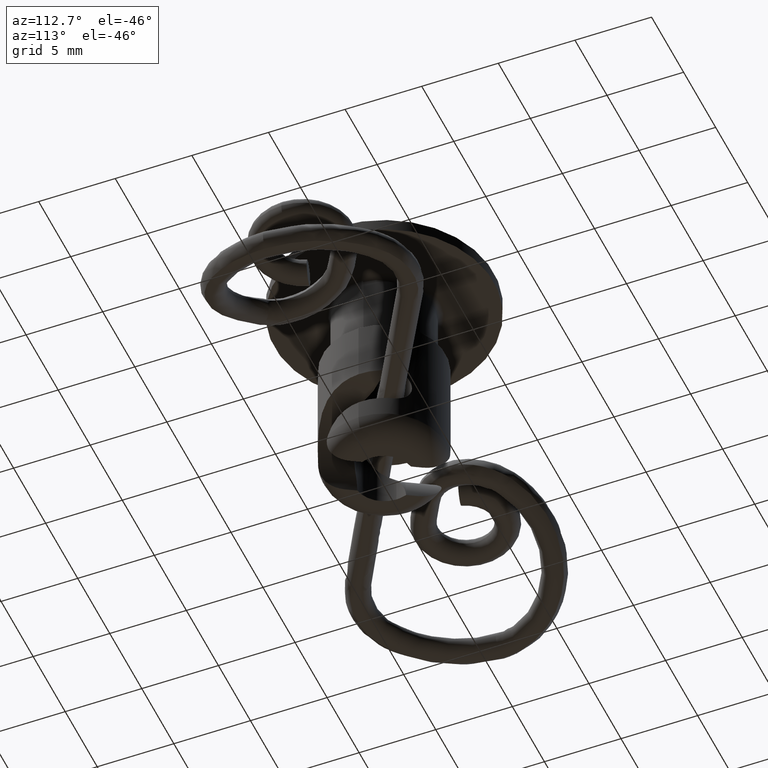
[diagram: clean part render]
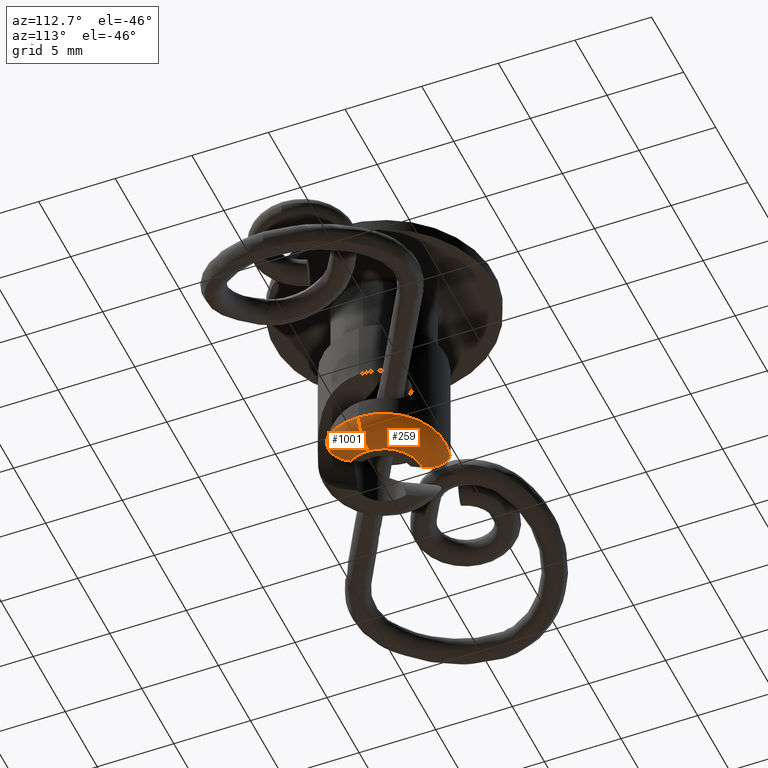
[diagram: same view with one multi-face feature highlighted, each face labeled with its STEP entity id]
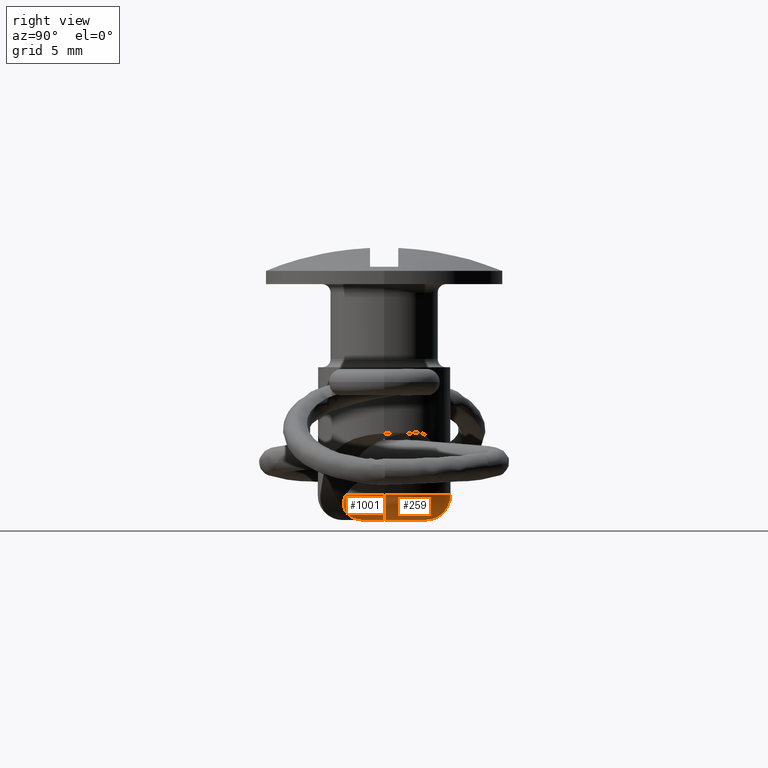
[diagram: same view with one multi-face feature highlighted, each face labeled with its STEP entity id]
A machine part, auxiliary view. The highlighted faces form ONE feature: a constant-radius fillet chain: 2 tangent blend faces with common blend radius 1.5 mm. The faces share edges in the B-rep.
A second angle (right view) of the same feature is appended — it is thin or edge-on in the first view.
Their STEP definitions:
[1] entity #1001 (Torus):
#422 = CARTESIAN_POINT ( 'NONE',  ( 0.0000000000000000000, 0.0000000000000000000, -4.055928000000000600 ) ) ;
#681 = CARTESIAN_POINT ( 'NONE',  ( 2.790311070923484400, -2.318811027943146200, -3.550012928386041100 ) ) ;
#1001 = ADVANCED_FACE ( 'NONE', ( #1492 ), #4982, .T. ) ;
#1126 = DIRECTION ( 'NONE',  ( 1.000000000000000000, 0.0000000000000000000, 0.0000000000000000000 ) ) ;
#1168 = VERTEX_POINT ( 'NONE', #7457 ) ;
#1173 = EDGE_CURVE ( 'NONE', #6547, #6207, #6626, .T. ) ;
#1386 = CARTESIAN_POINT ( 'NONE',  ( 2.547849212420948200, -1.994230781874681400, -3.878181529687487700 ) ) ;
#1492 = FACE_OUTER_BOUND ( 'NONE', #2127, .T. ) ;
#1645 = B_SPLINE_CURVE_WITH_KNOTS ( 'NONE', 3,
 ( #6225, #4831, #7642, #3459, #8355, #4165, #9062, #4854, #681, #5558, #1386, #6253, #2086, #6973 ),
 .UNSPECIFIED., .F., .F.,
 ( 4, 2, 2, 2, 2, 2, 4 ),
 ( 2.413043696113894800E-007, 0.0003112779674286721600, 0.0006223146304877329900, 0.0009333512935467937700, 0.001244387956605854400, 0.001866461282723977100, 0.002488534608842099700 ),
 .UNSPECIFIED. ) ;
#1696 = AXIS2_PLACEMENT_3D ( 'NONE', #422, #5300, #1126 ) ;
#1904 = CARTESIAN_POINT ( 'NONE',  ( 0.0000000000000000000, 0.0000000000000000000, -2.555927999999999800 ) ) ;
#1929 = AXIS2_PLACEMENT_3D ( 'NONE', #1904, #6785, #2608 ) ;
#2086 = CARTESIAN_POINT ( 'NONE',  ( 2.240226369694540600, -1.480187086471004900, -4.055927999999943800 ) ) ;
#2127 = EDGE_LOOP ( 'NONE', ( #8309, #8710, #5998, #7456 ) ) ;
#2608 = DIRECTION ( 'NONE',  ( 1.000000000000000000, 0.0000000000000000000, 0.0000000000000000000 ) ) ;
#3071 = DIRECTION ( 'NONE',  ( 0.0000000000000000000, -1.000000000000000000, 0.0000000000000000000 ) ) ;
#3330 = AXIS2_PLACEMENT_3D ( 'NONE', #7332, #6624, #8042 ) ;
#3459 = CARTESIAN_POINT ( 'NONE',  ( 3.105340106968701400, -2.455743244475078000, -2.917791203964304400 ) ) ;
#4165 = CARTESIAN_POINT ( 'NONE',  ( 2.975919885701070900, -2.454876455960262500, -3.201516127076831500 ) ) ;
#4362 = CARTESIAN_POINT ( 'NONE',  ( 3.257253687949085200, -2.321701620006844500, -2.555927999999999800 ) ) ;
#4675 = CARTESIAN_POINT ( 'NONE',  ( 2.500000000000045300, 0.0000000000000000000, -4.055928000000000600 ) ) ;
#4831 = CARTESIAN_POINT ( 'NONE',  ( 3.222293490510824000, -2.370749366304606600, -2.641862774587116400 ) ) ;
#4854 = CARTESIAN_POINT ( 'NONE',  ( 2.837902285769440700, -2.366461575884261800, -3.468323607179003300 ) ) ;
#4982 = TOROIDAL_SURFACE ( 'NONE', #3330, 2.500000000000045300, 1.500000000000000000 ) ;
#5210 = CIRCLE ( 'NONE', #5308, 1.500000000000000400 ) ;
#5300 = DIRECTION ( 'NONE',  ( -0.0000000000000000000, -0.0000000000000000000, -1.000000000000000000 ) ) ;
#5308 = AXIS2_PLACEMENT_3D ( 'NONE', #7250, #3071, #7961 ) ;
#5528 = VERTEX_POINT ( 'NONE', #4675 ) ;
#5546 = EDGE_CURVE ( 'NONE', #5528, #6207, #5210, .T. ) ;
#5558 = CARTESIAN_POINT ( 'NONE',  ( 2.646643497363180100, -2.147247829503949200, -3.767550300340740700 ) ) ;
#5836 = CIRCLE ( 'NONE', #1696, 2.500000000000045300 ) ;
#5998 = ORIENTED_EDGE ( 'NONE', *, *, #1173, .F. ) ;
#6207 = VERTEX_POINT ( 'NONE', #7615 ) ;
#6225 = CARTESIAN_POINT ( 'NONE',  ( 3.257253687949085200, -2.321701620006844500, -2.555927999999999800 ) ) ;
#6253 = CARTESIAN_POINT ( 'NONE',  ( 2.344400513302335600, -1.660151883955649300, -4.022184576184947100 ) ) ;
#6296 = EDGE_CURVE ( 'NONE', #6547, #1168, #1645, .T. ) ;
#6547 = VERTEX_POINT ( 'NONE', #4362 ) ;
#6624 = DIRECTION ( 'NONE',  ( 0.0000000000000000000, 0.0000000000000000000, 1.000000000000000000 ) ) ;
#6626 = CIRCLE ( 'NONE', #1929, 4.000000000000045300 ) ;
#6785 = DIRECTION ( 'NONE',  ( 0.0000000000000000000, 0.0000000000000000000, 1.000000000000000000 ) ) ;
#6973 = CARTESIAN_POINT ( 'NONE',  ( 2.135815771650950300, -1.299342522035008100, -4.055928000000000600 ) ) ;
#7250 = CARTESIAN_POINT ( 'NONE',  ( 2.500000000000045300, 0.0000000000000000000, -2.555927999999999800 ) ) ;
#7332 = CARTESIAN_POINT ( 'NONE',  ( 0.0000000000000000000, 0.0000000000000000000, -2.555927999999999800 ) ) ;
#7456 = ORIENTED_EDGE ( 'NONE', *, *, #6296, .T. ) ;
#7457 = CARTESIAN_POINT ( 'NONE',  ( 2.135815771650950300, -1.299342522035008100, -4.055928000000000600 ) ) ;
#7615 = CARTESIAN_POINT ( 'NONE',  ( 4.000000000000045300, 4.898587196589468000E-016, -2.555927999999999800 ) ) ;
#7642 = CARTESIAN_POINT ( 'NONE',  ( 3.185170871468795600, -2.407990601807792800, -2.731295587996683100 ) ) ;
#7961 = DIRECTION ( 'NONE',  ( 0.0000000000000000000, 0.0000000000000000000, -1.000000000000000000 ) ) ;
#8042 = DIRECTION ( 'NONE',  ( 1.000000000000000000, 0.0000000000000000000, 0.0000000000000000000 ) ) ;
#8082 = EDGE_CURVE ( 'NONE', #5528, #1168, #5836, .T. ) ;
#8309 = ORIENTED_EDGE ( 'NONE', *, *, #8082, .F. ) ;
#8355 = CARTESIAN_POINT ( 'NONE',  ( 3.062992992517301600, -2.465504154251822100, -3.013908948051650300 ) ) ;
#8710 = ORIENTED_EDGE ( 'NONE', *, *, #5546, .T. ) ;
#9062 = CARTESIAN_POINT ( 'NONE',  ( 2.930081196352734000, -2.434153306081983100, -3.295241119053628600 ) ) ;
[2] entity #259 (Torus):
#51 = AXIS2_PLACEMENT_3D ( 'NONE', #2362, #7248, #3069 ) ;
#259 = ADVANCED_FACE ( 'NONE', ( #729 ), #950, .T. ) ;
#306 = CARTESIAN_POINT ( 'NONE',  ( 0.0000000000000000000, 0.0000000000000000000, -2.555927999999999800 ) ) ;
#524 = CARTESIAN_POINT ( 'NONE',  ( -0.7405787421037746100, 3.606501496627410500, -3.485310298646945500 ) ) ;
#729 = FACE_OUTER_BOUND ( 'NONE', #3590, .T. ) ;
#950 = TOROIDAL_SURFACE ( 'NONE', #5814, 2.500000000000045300, 1.500000000000000000 ) ;
#970 = EDGE_CURVE ( 'NONE', #2415, #5528, #7069, .T. ) ;
#1011 = DIRECTION ( 'NONE',  ( 1.000000000000000000, 0.0000000000000000000, 0.0000000000000000000 ) ) ;
#1042 = ORIENTED_EDGE ( 'NONE', *, *, #1271, .F. ) ;
#1149 = CARTESIAN_POINT ( 'NONE',  ( 0.0000000000000000000, 0.0000000000000000000, -2.555927999999999800 ) ) ;
#1228 = CARTESIAN_POINT ( 'NONE',  ( -0.5632610136568372300, 3.356266332559755900, -3.770288615684792800 ) ) ;
#1271 = EDGE_CURVE ( 'NONE', #3342, #2415, #2985, .T. ) ;
#1760 = DIRECTION ( 'NONE',  ( 0.0000000000000000000, 0.0000000000000000000, 1.000000000000000000 ) ) ;
#1934 = CARTESIAN_POINT ( 'NONE',  ( -0.2666432078907424700, 2.862513171778047600, -4.021326483487508000 ) ) ;
#2362 = CARTESIAN_POINT ( 'NONE',  ( 0.0000000000000000000, 0.0000000000000000000, -4.055928000000000600 ) ) ;
#2415 = VERTEX_POINT ( 'NONE', #7403 ) ;
#2635 = CARTESIAN_POINT ( 'NONE',  ( -0.05678652249461620800, 2.499354974961175200, -4.055928000000000600 ) ) ;
#2985 = B_SPLINE_CURVE_WITH_KNOTS ( 'NONE', 3,
 ( #8873, #7485, #3306, #8197, #4001, #8904, #4708, #524, #5404, #1228, #6093, #1934, #6814, #2635 ),
 .UNSPECIFIED., .F., .F.,
 ( 4, 2, 2, 2, 2, 2, 4 ),
 ( 2.069731377641049100E-007, 0.0003124171688556495200, 0.0006246273645735349800, 0.0009368375602914204000, 0.001249047756009305800, 0.001873468147445075800, 0.002497888538880845100 ),
 .UNSPECIFIED. ) ;
#3069 = DIRECTION ( 'NONE',  ( 1.000000000000000000, 0.0000000000000000000, 0.0000000000000000000 ) ) ;
#3071 = DIRECTION ( 'NONE',  ( 0.0000000000000000000, -1.000000000000000000, 0.0000000000000000000 ) ) ;
#3306 = CARTESIAN_POINT ( 'NONE',  ( -1.045011278428364700, 3.850823402305097300, -2.755590278062849800 ) ) ;
#3342 = VERTEX_POINT ( 'NONE', #3572 ) ;
#3572 = CARTESIAN_POINT ( 'NONE',  ( -1.108397808777359800, 3.843364970634185300, -2.555927999999999800 ) ) ;
#3590 = EDGE_LOOP ( 'NONE', ( #8341, #6884, #1042, #3818 ) ) ;
#3818 = ORIENTED_EDGE ( 'NONE', *, *, #6603, .F. ) ;
#4001 = CARTESIAN_POINT ( 'NONE',  ( -0.9393113789079501300, 3.806504232003268500, -3.047904179911969300 ) ) ;
#4675 = CARTESIAN_POINT ( 'NONE',  ( 2.500000000000045300, 0.0000000000000000000, -4.055928000000000600 ) ) ;
#4708 = CARTESIAN_POINT ( 'NONE',  ( -0.8234494711917143000, 3.704232393046660700, -3.320244744276941600 ) ) ;
#5188 = DIRECTION ( 'NONE',  ( 0.0000000000000000000, 0.0000000000000000000, 1.000000000000000000 ) ) ;
#5210 = CIRCLE ( 'NONE', #5308, 1.500000000000000400 ) ;
#5232 = DIRECTION ( 'NONE',  ( 1.000000000000000000, 0.0000000000000000000, 0.0000000000000000000 ) ) ;
#5308 = AXIS2_PLACEMENT_3D ( 'NONE', #7250, #3071, #7961 ) ;
#5404 = CARTESIAN_POINT ( 'NONE',  ( -0.6969373868598151000, 3.548447780571618400, -3.562983429896619600 ) ) ;
#5528 = VERTEX_POINT ( 'NONE', #4675 ) ;
#5546 = EDGE_CURVE ( 'NONE', #5528, #6207, #5210, .T. ) ;
#5814 = AXIS2_PLACEMENT_3D ( 'NONE', #1149, #1760, #5232 ) ;
#6093 = CARTESIAN_POINT ( 'NONE',  ( -0.4667394063586882100, 3.199167724819091100, -3.879260321841057700 ) ) ;
#6207 = VERTEX_POINT ( 'NONE', #7615 ) ;
#6603 = EDGE_CURVE ( 'NONE', #6207, #3342, #7608, .T. ) ;
#6814 = CARTESIAN_POINT ( 'NONE',  ( -0.1611035543529213400, 2.680037477917260400, -4.055928000000033500 ) ) ;
#6884 = ORIENTED_EDGE ( 'NONE', *, *, #970, .F. ) ;
#7020 = AXIS2_PLACEMENT_3D ( 'NONE', #306, #5188, #1011 ) ;
#7069 = CIRCLE ( 'NONE', #51, 2.500000000000045300 ) ;
#7248 = DIRECTION ( 'NONE',  ( -0.0000000000000000000, -0.0000000000000000000, -1.000000000000000000 ) ) ;
#7250 = CARTESIAN_POINT ( 'NONE',  ( 2.500000000000045300, 0.0000000000000000000, -2.555927999999999800 ) ) ;
#7403 = CARTESIAN_POINT ( 'NONE',  ( -0.05678652249461620800, 2.499354974961175200, -4.055928000000000600 ) ) ;
#7485 = CARTESIAN_POINT ( 'NONE',  ( -1.077547685918882600, 3.852261916107252200, -2.656490853154524200 ) ) ;
#7608 = CIRCLE ( 'NONE', #7020, 4.000000000000045300 ) ;
#7615 = CARTESIAN_POINT ( 'NONE',  ( 4.000000000000045300, 4.898587196589468000E-016, -2.555927999999999800 ) ) ;
#7961 = DIRECTION ( 'NONE',  ( 0.0000000000000000000, 0.0000000000000000000, -1.000000000000000000 ) ) ;
#8197 = CARTESIAN_POINT ( 'NONE',  ( -0.9761126366509662600, 3.828150070365853500, -2.950779561917071800 ) ) ;
#8341 = ORIENTED_EDGE ( 'NONE', *, *, #5546, .F. ) ;
#8873 = CARTESIAN_POINT ( 'NONE',  ( -1.108397808777359800, 3.843364970634185300, -2.555927999999999800 ) ) ;
#8904 = CARTESIAN_POINT ( 'NONE',  ( -0.8629140910424201200, 3.744373541031671900, -3.232700028630489400 ) ) ;